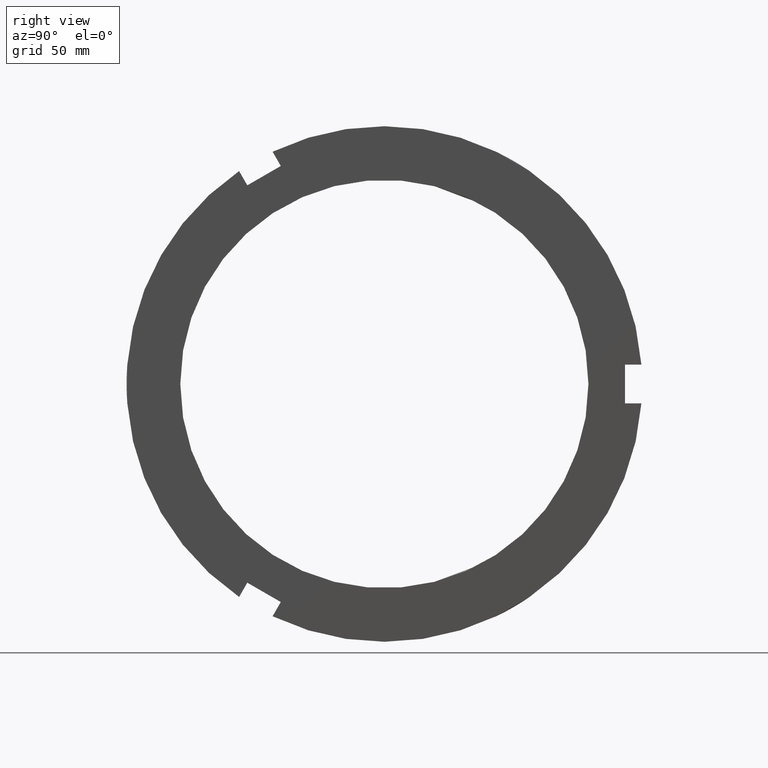
[diagram: clean part render]
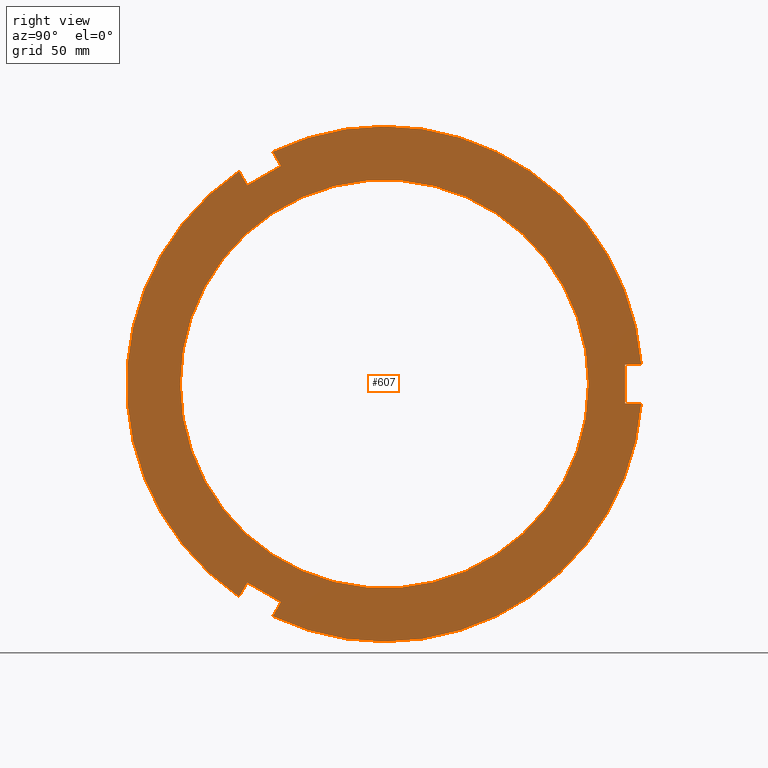
[diagram: same view with one face highlighted and labeled with its STEP entity id]
A machine part, right view. The second image highlights one B-rep face of the part: STEP entity #607.
In plain terms, the highlighted planar face has unit normal (1, 0, 0).
Its self-contained STEP definition (entity closure, byte-faithful):
#347=CARTESIAN_POINT('',(29.999999999999972,-63.794228634059991,-92.494845223857112));
#348=VERTEX_POINT('',#347);
#355=CARTESIAN_POINT('',(29.999999999999972,-67.625240659597395,-99.130352696495237));
#356=VERTEX_POINT('',#355);
#357=CARTESIAN_POINT('',(29.999999999999972,-67.625240659597409,-99.130352696495237));
#358=DIRECTION('',(0.0,0.5,0.866025403784438));
#359=VECTOR('',#358,7.66202405107479);
#360=LINE('',#357,#359);
#361=EDGE_CURVE('',#356,#348,#360,.T.);
#385=CARTESIAN_POINT('',(29.999999999999972,-48.205771365940073,-101.49484522385708));
#386=VERTEX_POINT('',#385);
#393=CARTESIAN_POINT('',(29.999999999999972,-63.794228634060026,-92.494845223857126));
#394=DIRECTION('',(0.0,0.866025403784439,-0.5));
#395=VECTOR('',#394,18.000000000000018);
#396=LINE('',#393,#395);
#397=EDGE_CURVE('',#348,#386,#396,.T.);
#416=CARTESIAN_POINT('',(29.999999999999972,-52.036783391477499,-108.13035269649525));
#417=VERTEX_POINT('',#416);
#424=CARTESIAN_POINT('',(29.999999999999972,-48.20577136594008,-101.49484522385711));
#425=DIRECTION('',(0.0,-0.500000000000001,-0.866025403784438));
#426=VECTOR('',#425,7.662024051074826);
#427=LINE('',#424,#426);
#428=EDGE_CURVE('',#386,#417,#427,.T.);
#449=CARTESIAN_POINT('',(29.999999999999972,-48.205771365940038,101.49484522385713));
#450=VERTEX_POINT('',#449);
#457=CARTESIAN_POINT('',(29.999999999999972,-52.036783391477435,108.13035269649527));
#458=VERTEX_POINT('',#457);
#459=CARTESIAN_POINT('',(29.999999999999972,-52.036783391477449,108.13035269649529));
#460=DIRECTION('',(0.0,0.499999999999999,-0.866025403784439));
#461=VECTOR('',#460,7.662024051074815);
#462=LINE('',#459,#461);
#463=EDGE_CURVE('',#458,#450,#462,.T.);
#487=CARTESIAN_POINT('',(29.999999999999972,-63.794228634059934,92.494845223857126));
#488=VERTEX_POINT('',#487);
#495=CARTESIAN_POINT('',(29.999999999999972,-48.205771365940052,101.49484522385713));
#496=DIRECTION('',(0.0,-0.866025403784439,-0.5));
#497=VECTOR('',#496,18.000000000000014);
#498=LINE('',#495,#497);
#499=EDGE_CURVE('',#450,#488,#498,.T.);
#518=CARTESIAN_POINT('',(29.999999999999972,-67.625240659597353,99.130352696495265));
#519=VERTEX_POINT('',#518);
#526=CARTESIAN_POINT('',(29.999999999999972,-63.79422863405992,92.494845223857112));
#527=DIRECTION('',(0.0,-0.499999999999999,0.866025403784439));
#528=VECTOR('',#527,7.662024051074819);
#529=LINE('',#526,#528);
#530=EDGE_CURVE('',#488,#519,#529,.T.);
#536=CARTESIAN_POINT('',(29.999999999999972,107.5,0.0));
#537=DIRECTION('',(1.0,0.0,0.0));
#538=DIRECTION('',(0.0,0.0,-1.0));
#539=AXIS2_PLACEMENT_3D('',#536,#537,#538);
#540=PLANE('',#539);
#541=ORIENTED_EDGE('',*,*,#361,.T.);
#542=ORIENTED_EDGE('',*,*,#397,.T.);
#543=ORIENTED_EDGE('',*,*,#428,.T.);
#544=CARTESIAN_POINT('',(29.999999999999972,119.66202405107479,-8.999999999999988));
#545=VERTEX_POINT('',#544);
#546=CARTESIAN_POINT('',(29.999999999999972,0.0,0.0));
#547=DIRECTION('',(1.0,0.0,0.0));
#548=DIRECTION('',(0.0,1.0,0.0));
#549=AXIS2_PLACEMENT_3D('',#546,#547,#548);
#550=CIRCLE('',#549,120.0);
#551=EDGE_CURVE('',#417,#545,#550,.T.);
#552=ORIENTED_EDGE('',*,*,#551,.T.);
#553=CARTESIAN_POINT('',(29.999999999999972,112.0,-8.999999999999986));
#554=VERTEX_POINT('',#553);
#555=CARTESIAN_POINT('',(29.999999999999972,119.66202405107479,-8.999999999999986));
#556=DIRECTION('',(0.0,-1.0,0.0));
#557=VECTOR('',#556,7.662024051074795);
#558=LINE('',#555,#557);
#559=EDGE_CURVE('',#545,#554,#558,.T.);
#560=ORIENTED_EDGE('',*,*,#559,.T.);
#561=CARTESIAN_POINT('',(29.999999999999972,112.0,9.000000000000014));
#562=VERTEX_POINT('',#561);
#563=CARTESIAN_POINT('',(29.999999999999972,112.0,-8.999999999999986));
#564=DIRECTION('',(0.0,0.0,1.0));
#565=VECTOR('',#564,18.0);
#566=LINE('',#563,#565);
#567=EDGE_CURVE('',#554,#562,#566,.T.);
#568=ORIENTED_EDGE('',*,*,#567,.T.);
#569=CARTESIAN_POINT('',(29.999999999999972,119.66202405107479,9.000000000000016));
#570=VERTEX_POINT('',#569);
#571=CARTESIAN_POINT('',(29.999999999999972,112.0,9.000000000000014));
#572=DIRECTION('',(0.0,1.0,0.0));
#573=VECTOR('',#572,7.662024051074795);
#574=LINE('',#571,#573);
#575=EDGE_CURVE('',#562,#570,#574,.T.);
#576=ORIENTED_EDGE('',*,*,#575,.T.);
#577=CARTESIAN_POINT('',(29.999999999999972,0.0,0.0));
#578=DIRECTION('',(1.0,0.0,0.0));
#579=DIRECTION('',(0.0,1.0,0.0));
#580=AXIS2_PLACEMENT_3D('',#577,#578,#579);
#581=CIRCLE('',#580,120.0);
#582=EDGE_CURVE('',#570,#458,#581,.T.);
#583=ORIENTED_EDGE('',*,*,#582,.T.);
#584=ORIENTED_EDGE('',*,*,#463,.T.);
#585=ORIENTED_EDGE('',*,*,#499,.T.);
#586=ORIENTED_EDGE('',*,*,#530,.T.);
#587=CARTESIAN_POINT('',(29.999999999999972,0.0,0.0));
#588=DIRECTION('',(1.0,0.0,0.0));
#589=DIRECTION('',(0.0,1.0,0.0));
#590=AXIS2_PLACEMENT_3D('',#587,#588,#589);
#591=CIRCLE('',#590,120.0);
#592=EDGE_CURVE('',#519,#356,#591,.T.);
#593=ORIENTED_EDGE('',*,*,#592,.T.);
#594=EDGE_LOOP('',(#541,#542,#543,#552,#560,#568,#576,#583,#584,#585,#586,#593));
#595=FACE_OUTER_BOUND('',#594,.T.);
#596=CARTESIAN_POINT('',(29.999999999999979,95.0,0.0));
#597=VERTEX_POINT('',#596);
#598=CARTESIAN_POINT('',(29.999999999999979,0.0,0.0));
#599=DIRECTION('',(1.0,0.0,0.0));
#600=DIRECTION('',(0.0,1.0,0.0));
#601=AXIS2_PLACEMENT_3D('',#598,#599,#600);
#602=CIRCLE('',#601,95.0);
#603=EDGE_CURVE('',#597,#597,#602,.T.);
#604=ORIENTED_EDGE('',*,*,#603,.F.);
#605=EDGE_LOOP('',(#604));
#606=FACE_BOUND('',#605,.T.);
#607=ADVANCED_FACE('',(#595,#606),#540,.T.);